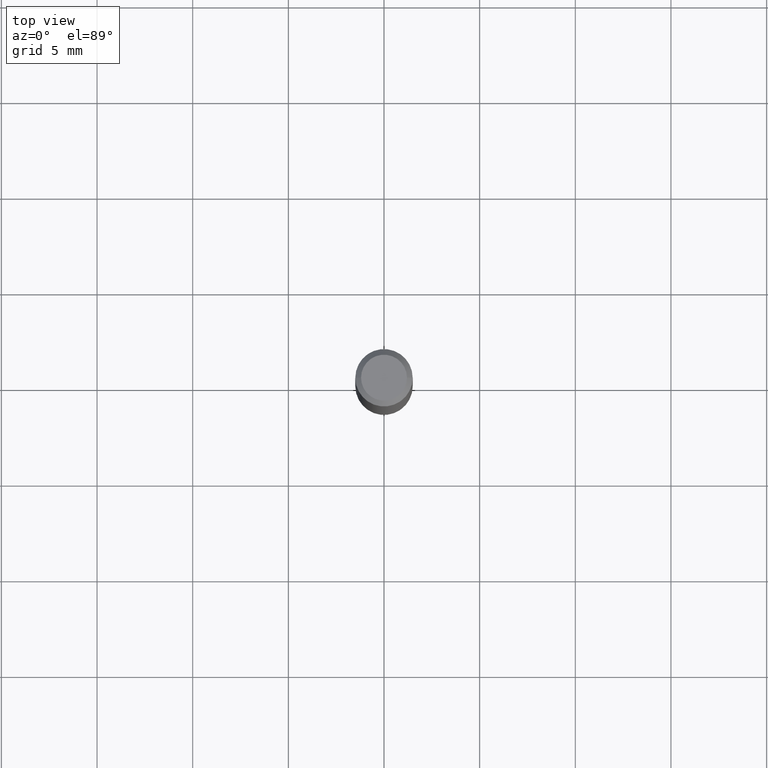
[diagram: clean part render]
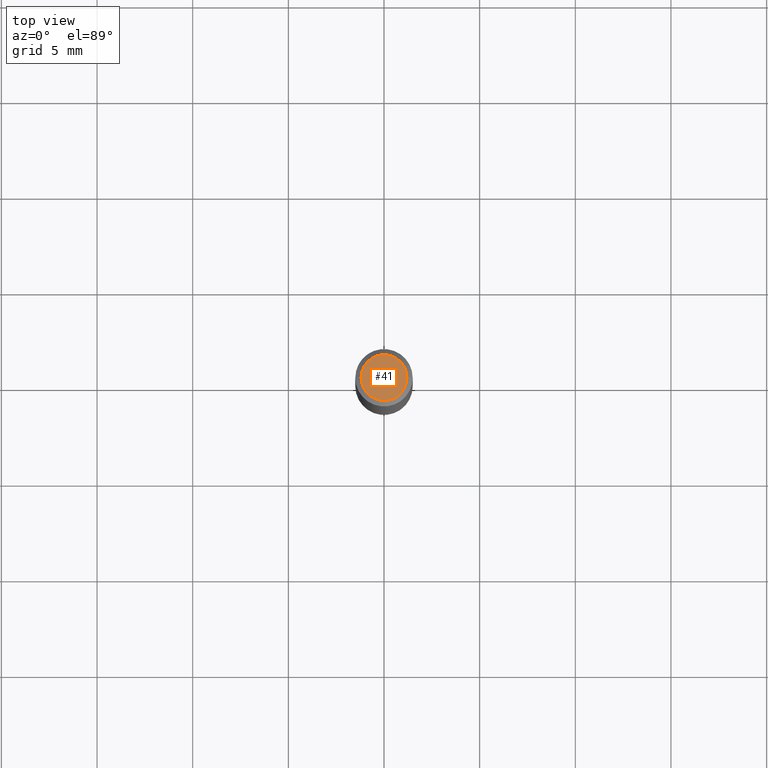
[diagram: same view with one face highlighted and labeled with its STEP entity id]
A machine part, top view. The second image highlights one B-rep face of the part: STEP entity #41.
In plain terms, the highlighted planar face has unit normal (0, -0, -1).
Its self-contained STEP definition (entity closure, byte-faithful):
#14 = EDGE_LOOP ( 'NONE', ( #371, #144 ) ) ;
#19 = VERTEX_POINT ( 'NONE', #39 ) ;
#29 = EDGE_CURVE ( 'NONE', #71, #19, #345, .T. ) ;
#39 = CARTESIAN_POINT ( 'NONE',  ( 0.04724000000000000421, -3.852183633974369838E-16, -3.380025165621689721E-19 ) ) ;
#41 = ADVANCED_FACE ( 'NONE', ( #324 ), #221, .F. ) ;
#70 = CARTESIAN_POINT ( 'NONE',  ( 8.265746106709734507E-48, -1.180129479067563789E-33, -3.380025165646692144E-19 ) ) ;
#71 = VERTEX_POINT ( 'NONE', #218 ) ;
#72 = AXIS2_PLACEMENT_3D ( 'NONE', #389, #207, #323 ) ;
#113 = DIRECTION ( 'NONE',  ( -1.000000000000000000, 6.982962677686265922E-15, -4.876176775795935793E-29 ) ) ;
#133 = AXIS2_PLACEMENT_3D ( 'NONE', #372, #482, #113 ) ;
#144 = ORIENTED_EDGE ( 'NONE', *, *, #381, .T. ) ;
#191 = CIRCLE ( 'NONE', #72, 0.04724000000000000421 ) ;
#207 = DIRECTION ( 'NONE',  ( -2.445468806185136597E-29, 3.491481338843145583E-15, 1.000000000000000000 ) ) ;
#218 = CARTESIAN_POINT ( 'NONE',  ( -0.04724000000000000421, 3.504923541997677355E-16, -3.380025165670481712E-19 ) ) ;
#221 = PLANE ( 'NONE',  #133 ) ;
#239 = AXIS2_PLACEMENT_3D ( 'NONE', #70, #295, #455 ) ;
#295 = DIRECTION ( 'NONE',  ( -2.445468806185136597E-29, 3.491481338843145583E-15, 1.000000000000000000 ) ) ;
#323 = DIRECTION ( 'NONE',  ( 1.000000000000000000, -6.982962677686266711E-15, 4.876185090822587894E-29 ) ) ;
#324 = FACE_OUTER_BOUND ( 'NONE', #14, .T. ) ;
#345 = CIRCLE ( 'NONE', #239, 0.04724000000000000421 ) ;
#371 = ORIENTED_EDGE ( 'NONE', *, *, #29, .T. ) ;
#372 = CARTESIAN_POINT ( 'NONE',  ( 4.132873053354867254E-48, -5.900647395337818946E-34, -1.690012582823346072E-19 ) ) ;
#381 = EDGE_CURVE ( 'NONE', #19, #71, #191, .T. ) ;
#389 = CARTESIAN_POINT ( 'NONE',  ( 8.265746106709734507E-48, -1.180129479067563789E-33, -3.380025165646692144E-19 ) ) ;
#455 = DIRECTION ( 'NONE',  ( 1.000000000000000000, -6.982962677686266711E-15, 4.876185090822587894E-29 ) ) ;
#482 = DIRECTION ( 'NONE',  ( 2.438088387897960049E-29, -3.491481338843145188E-15, -1.000000000000000000 ) ) ;